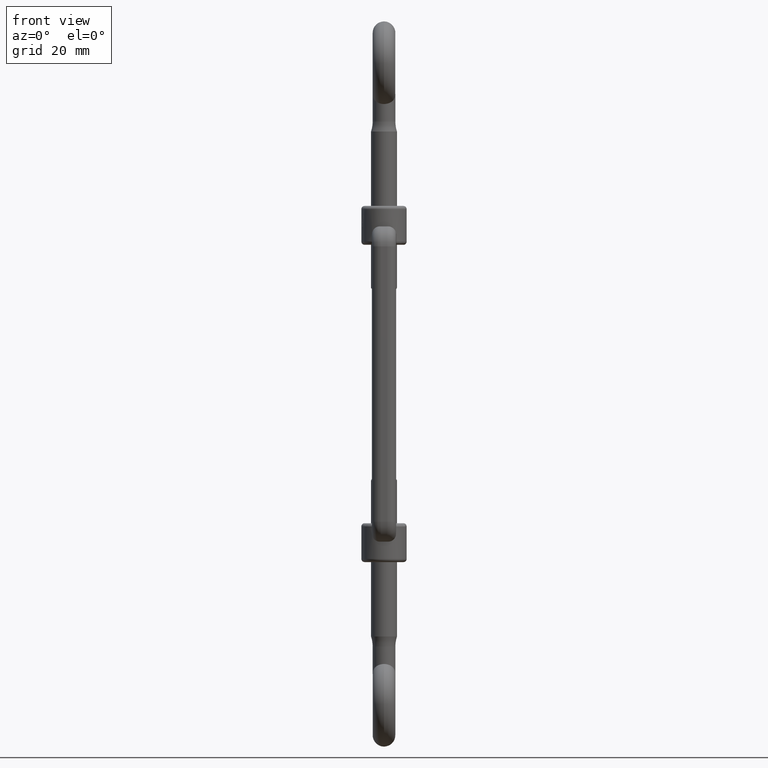
[diagram: clean part render]
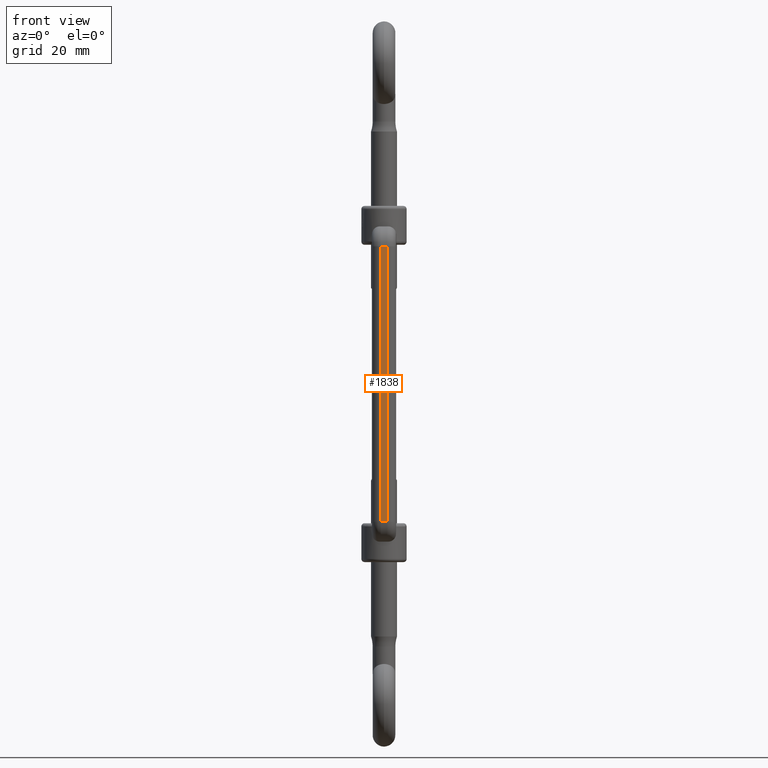
[diagram: same view with one face highlighted and labeled with its STEP entity id]
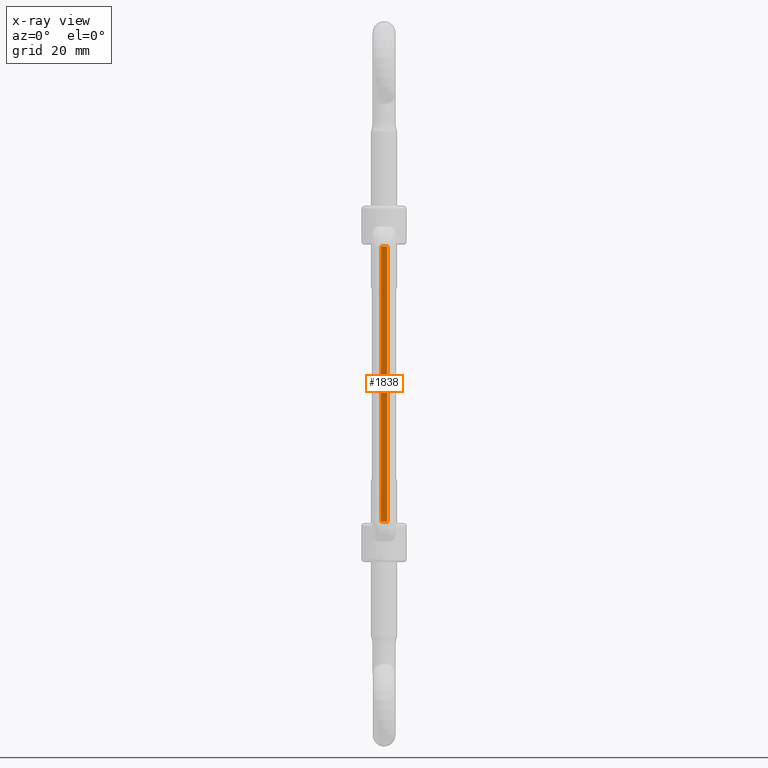
[diagram: x-ray of the same camera — body ghosted, the highlighted face saturated]
A machine part, front view. The second image highlights one B-rep face of the part: STEP entity #1838.
The next image is the same camera in x-ray: the body ghosted, the highlighted face saturated — about 0% of this face is hidden behind the body in this view.
In plain terms, the highlighted planar face has unit normal (0, 1, 0).
Its self-contained STEP definition (entity closure, byte-faithful):
#281 = VERTEX_POINT ( 'NONE', #17232 ) ;
#765 = PLANE ( 'NONE',  #3808 ) ;
#1838 = ADVANCED_FACE ( 'NONE', ( #16313 ), #765, .F. ) ;
#2187 = CARTESIAN_POINT ( 'NONE',  ( 0.9999999999999974500, -11.50000000000000400, 42.49999999999998600 ) ) ;
#2188 = EDGE_CURVE ( 'NONE', #6441, #14561, #6854, .T. ) ;
#2222 = LINE ( 'NONE', #7081, #15165 ) ;
#2316 = CARTESIAN_POINT ( 'NONE',  ( -0.9999999999999974500, -11.50000000000000000, -42.50000000000000000 ) ) ;
#3124 = EDGE_LOOP ( 'NONE', ( #17464, #15265, #7607, #3868 ) ) ;
#3650 = CARTESIAN_POINT ( 'NONE',  ( -0.9999999999999974500, -11.50000000000000400, 42.49999999999998600 ) ) ;
#3808 = AXIS2_PLACEMENT_3D ( 'NONE', #4048, #13475, #16479 ) ;
#3868 = ORIENTED_EDGE ( 'NONE', *, *, #9864, .F. ) ;
#4048 = CARTESIAN_POINT ( 'NONE',  ( -0.9999999999999974500, -11.50000000000000400, 42.49999999999998600 ) ) ;
#5193 = CARTESIAN_POINT ( 'NONE',  ( 0.9999999999999974500, -11.50000000000000400, 42.49999999999998600 ) ) ;
#6349 = VECTOR ( 'NONE', #15539, 1000.000000000000000 ) ;
#6441 = VERTEX_POINT ( 'NONE', #3650 ) ;
#6854 = LINE ( 'NONE', #12131, #6349 ) ;
#6900 = LINE ( 'NONE', #5193, #9154 ) ;
#7081 = CARTESIAN_POINT ( 'NONE',  ( -0.9999999999999974500, -11.50000000000000400, 42.49999999999998600 ) ) ;
#7091 = CARTESIAN_POINT ( 'NONE',  ( 0.9999999999999974500, -11.50000000000000000, -42.50000000000000000 ) ) ;
#7607 = ORIENTED_EDGE ( 'NONE', *, *, #20598, .T. ) ;
#7656 = VERTEX_POINT ( 'NONE', #7091 ) ;
#8853 = DIRECTION ( 'NONE',  ( 1.000000000000000000, 0.0000000000000000000, 0.0000000000000000000 ) ) ;
#9154 = VECTOR ( 'NONE', #9840, 1000.000000000000000 ) ;
#9840 = DIRECTION ( 'NONE',  ( 0.0000000000000000000, 3.061276722312012700E-017, -1.000000000000000000 ) ) ;
#9864 = EDGE_CURVE ( 'NONE', #14561, #7656, #6900, .T. ) ;
#11717 = DIRECTION ( 'NONE',  ( 0.0000000000000000000, 3.061276722312012700E-017, -1.000000000000000000 ) ) ;
#12131 = CARTESIAN_POINT ( 'NONE',  ( -0.9999999999999974500, -11.50000000000000400, 42.49999999999998600 ) ) ;
#13475 = DIRECTION ( 'NONE',  ( -0.0000000000000000000, 1.000000000000000000, 3.061276722312012700E-017 ) ) ;
#13860 = LINE ( 'NONE', #2316, #18359 ) ;
#14561 = VERTEX_POINT ( 'NONE', #2187 ) ;
#15165 = VECTOR ( 'NONE', #11717, 1000.000000000000000 ) ;
#15265 = ORIENTED_EDGE ( 'NONE', *, *, #16267, .T. ) ;
#15539 = DIRECTION ( 'NONE',  ( 1.000000000000000000, 0.0000000000000000000, 0.0000000000000000000 ) ) ;
#16267 = EDGE_CURVE ( 'NONE', #6441, #281, #2222, .T. ) ;
#16313 = FACE_OUTER_BOUND ( 'NONE', #3124, .T. ) ;
#16479 = DIRECTION ( 'NONE',  ( 0.0000000000000000000, -3.061276722312012700E-017, 1.000000000000000000 ) ) ;
#17232 = CARTESIAN_POINT ( 'NONE',  ( -0.9999999999999974500, -11.50000000000000000, -42.50000000000000000 ) ) ;
#17464 = ORIENTED_EDGE ( 'NONE', *, *, #2188, .F. ) ;
#18359 = VECTOR ( 'NONE', #8853, 1000.000000000000000 ) ;
#20598 = EDGE_CURVE ( 'NONE', #281, #7656, #13860, .T. ) ;